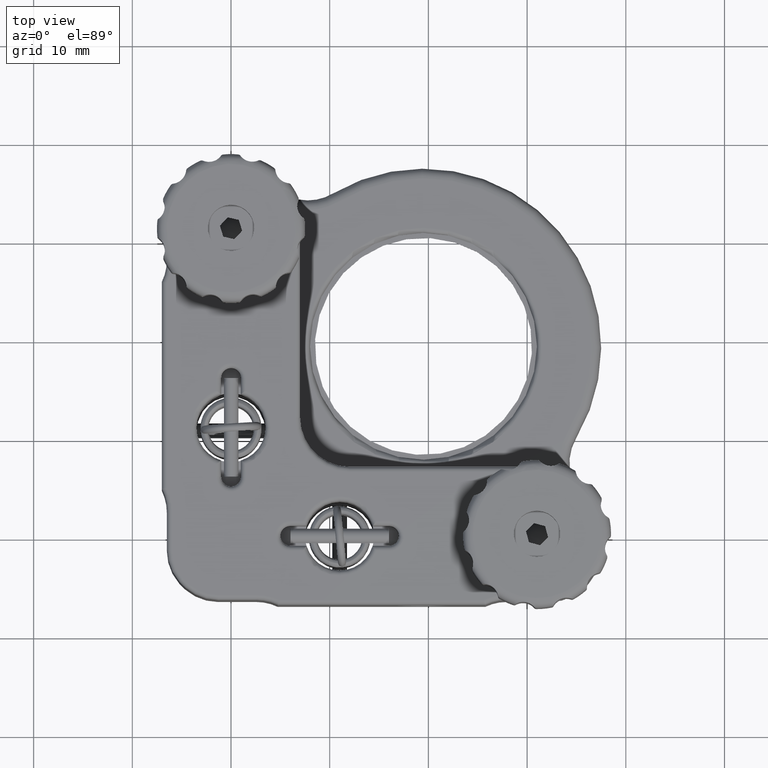
[diagram: clean part render]
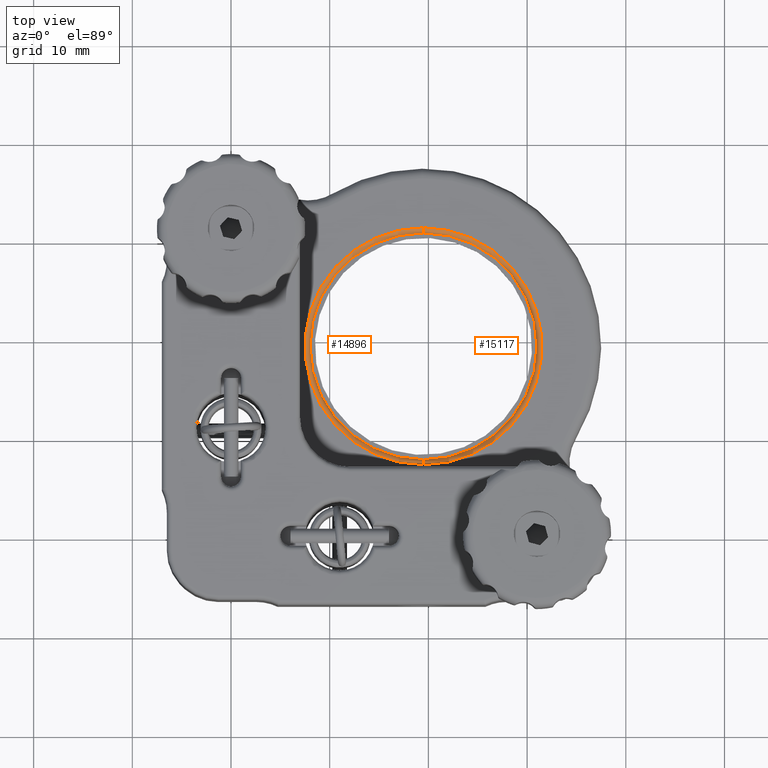
[diagram: same view with one multi-face feature highlighted, each face labeled with its STEP entity id]
A machine part, top view. The highlighted faces form ONE feature: a constant-radius fillet chain: 2 tangent blend faces with common blend radius 0.5 mm. The faces share edges in the B-rep.
Their STEP definitions:
[1] entity #15117 (Torus):
#118 = CARTESIAN_POINT ( 'NONE',  ( 19.49999999999997500, 19.49999999999998600, -9.999999999999987600 ) ) ;
#1392 = CARTESIAN_POINT ( 'NONE',  ( 19.49999999999998900, 7.499999999999969800, -9.999999999999989300 ) ) ;
#1927 = VERTEX_POINT ( 'NONE', #19230 ) ;
#2286 = TOROIDAL_SURFACE ( 'NONE', #6883, 12.00000000000001600, 0.5000000000000000000 ) ;
#2372 = EDGE_CURVE ( 'NONE', #2481, #1927, #9835, .T. ) ;
#2481 = VERTEX_POINT ( 'NONE', #2801 ) ;
#2801 = CARTESIAN_POINT ( 'NONE',  ( 19.49999999999996100, 31.00000000000000000, -10.49999999999998800 ) ) ;
#3921 = EDGE_CURVE ( 'NONE', #11798, #2481, #17449, .T. ) ;
#4225 = EDGE_CURVE ( 'NONE', #11798, #18182, #16172, .T. ) ;
#4497 = DIRECTION ( 'NONE',  ( 0.0000000000000000000, -1.000000000000000000, 0.0000000000000000000 ) ) ;
#4770 = AXIS2_PLACEMENT_3D ( 'NONE', #118, #18036, #19515 ) ;
#4844 = ORIENTED_EDGE ( 'NONE', *, *, #3921, .F. ) ;
#4878 = DIRECTION ( 'NONE',  ( 0.0000000000000000000, 1.000000000000000000, 0.0000000000000000000 ) ) ;
#4945 = CARTESIAN_POINT ( 'NONE',  ( 19.49999999999998900, 7.499999999999969800, -10.49999999999999100 ) ) ;
#5743 = EDGE_LOOP ( 'NONE', ( #16795, #4844, #9062, #9136 ) ) ;
#6345 = FACE_OUTER_BOUND ( 'NONE', #5743, .T. ) ;
#6883 = AXIS2_PLACEMENT_3D ( 'NONE', #9105, #18899, #15750 ) ;
#7291 = DIRECTION ( 'NONE',  ( -3.911801438327713800E-016, -1.942890293094031600E-016, 1.000000000000000000 ) ) ;
#7496 = AXIS2_PLACEMENT_3D ( 'NONE', #15562, #7291, #18579 ) ;
#9062 = ORIENTED_EDGE ( 'NONE', *, *, #4225, .T. ) ;
#9105 = CARTESIAN_POINT ( 'NONE',  ( 19.49999999999997500, 19.49999999999998600, -10.49999999999998900 ) ) ;
#9136 = ORIENTED_EDGE ( 'NONE', *, *, #16326, .F. ) ;
#9835 = CIRCLE ( 'NONE', #11206, 0.5000000000000004400 ) ;
#11206 = AXIS2_PLACEMENT_3D ( 'NONE', #12561, #12639, #4497 ) ;
#11798 = VERTEX_POINT ( 'NONE', #14752 ) ;
#12561 = CARTESIAN_POINT ( 'NONE',  ( 19.49999999999996100, 31.50000000000000000, -10.49999999999998800 ) ) ;
#12639 = DIRECTION ( 'NONE',  ( -1.000000000000000000, -1.260443280155520800E-015, -3.911801438327716300E-016 ) ) ;
#14405 = CIRCLE ( 'NONE', #4770, 12.00000000000001600 ) ;
#14752 = CARTESIAN_POINT ( 'NONE',  ( 19.49999999999998900, 7.999999999999970700, -10.49999999999999100 ) ) ;
#15117 = ADVANCED_FACE ( 'NONE', ( #6345 ), #2286, .T. ) ;
#15562 = CARTESIAN_POINT ( 'NONE',  ( 19.49999999999997500, 19.49999999999998600, -10.49999999999998900 ) ) ;
#15750 = DIRECTION ( 'NONE',  ( 1.110223024625155200E-015, -1.000000000000000000, -1.942890293094027200E-016 ) ) ;
#16172 = CIRCLE ( 'NONE', #17562, 0.5000000000000004400 ) ;
#16279 = DIRECTION ( 'NONE',  ( 1.000000000000000000, 1.137978600240785500E-015, 3.911801438327715800E-016 ) ) ;
#16326 = EDGE_CURVE ( 'NONE', #1927, #18182, #14405, .T. ) ;
#16795 = ORIENTED_EDGE ( 'NONE', *, *, #2372, .F. ) ;
#17449 = CIRCLE ( 'NONE', #7496, 11.50000000000001600 ) ;
#17562 = AXIS2_PLACEMENT_3D ( 'NONE', #4945, #16279, #4878 ) ;
#18036 = DIRECTION ( 'NONE',  ( 3.911801438327713800E-016, 1.942890293094031600E-016, -1.000000000000000000 ) ) ;
#18182 = VERTEX_POINT ( 'NONE', #1392 ) ;
#18579 = DIRECTION ( 'NONE',  ( 1.206764157201255400E-015, -1.000000000000000000, -1.508455196501569200E-016 ) ) ;
#18899 = DIRECTION ( 'NONE',  ( 3.911801438327713800E-016, 1.942890293094031600E-016, -1.000000000000000000 ) ) ;
#19230 = CARTESIAN_POINT ( 'NONE',  ( 19.49999999999996100, 31.50000000000000000, -9.999999999999985800 ) ) ;
#19515 = DIRECTION ( 'NONE',  ( 1.156482317317870000E-015, -1.000000000000000000, -1.445602896647337400E-016 ) ) ;
[2] entity #14896 (Torus):
#1392 = CARTESIAN_POINT ( 'NONE',  ( 19.49999999999998900, 7.499999999999969800, -9.999999999999989300 ) ) ;
#1508 = CIRCLE ( 'NONE', #11913, 11.50000000000001600 ) ;
#1927 = VERTEX_POINT ( 'NONE', #19230 ) ;
#2372 = EDGE_CURVE ( 'NONE', #2481, #1927, #9835, .T. ) ;
#2481 = VERTEX_POINT ( 'NONE', #2801 ) ;
#2801 = CARTESIAN_POINT ( 'NONE',  ( 19.49999999999996100, 31.00000000000000000, -10.49999999999998800 ) ) ;
#2862 = DIRECTION ( 'NONE',  ( 1.156482317317870000E-015, -1.000000000000000000, -1.445602896647337400E-016 ) ) ;
#4225 = EDGE_CURVE ( 'NONE', #11798, #18182, #16172, .T. ) ;
#4497 = DIRECTION ( 'NONE',  ( 0.0000000000000000000, -1.000000000000000000, 0.0000000000000000000 ) ) ;
#4878 = DIRECTION ( 'NONE',  ( 0.0000000000000000000, 1.000000000000000000, 0.0000000000000000000 ) ) ;
#4945 = CARTESIAN_POINT ( 'NONE',  ( 19.49999999999998900, 7.499999999999969800, -10.49999999999999100 ) ) ;
#5095 = TOROIDAL_SURFACE ( 'NONE', #13662, 12.00000000000001600, 0.5000000000000000000 ) ;
#5376 = DIRECTION ( 'NONE',  ( 3.911801438327713800E-016, 1.942890293094031600E-016, -1.000000000000000000 ) ) ;
#6243 = ORIENTED_EDGE ( 'NONE', *, *, #11649, .F. ) ;
#9835 = CIRCLE ( 'NONE', #11206, 0.5000000000000004400 ) ;
#10038 = EDGE_CURVE ( 'NONE', #18182, #1927, #11677, .T. ) ;
#10094 = DIRECTION ( 'NONE',  ( 1.110223024625155200E-015, -1.000000000000000000, -1.942890293094027200E-016 ) ) ;
#10890 = FACE_OUTER_BOUND ( 'NONE', #12077, .T. ) ;
#11206 = AXIS2_PLACEMENT_3D ( 'NONE', #12561, #12639, #4497 ) ;
#11649 = EDGE_CURVE ( 'NONE', #2481, #11798, #1508, .T. ) ;
#11677 = CIRCLE ( 'NONE', #18929, 12.00000000000001600 ) ;
#11798 = VERTEX_POINT ( 'NONE', #14752 ) ;
#11913 = AXIS2_PLACEMENT_3D ( 'NONE', #17556, #19339, #14327 ) ;
#12077 = EDGE_LOOP ( 'NONE', ( #6243, #18458, #19883, #16499 ) ) ;
#12561 = CARTESIAN_POINT ( 'NONE',  ( 19.49999999999996100, 31.50000000000000000, -10.49999999999998800 ) ) ;
#12639 = DIRECTION ( 'NONE',  ( -1.000000000000000000, -1.260443280155520800E-015, -3.911801438327716300E-016 ) ) ;
#13436 = CARTESIAN_POINT ( 'NONE',  ( 19.49999999999997500, 19.49999999999998600, -10.49999999999998900 ) ) ;
#13662 = AXIS2_PLACEMENT_3D ( 'NONE', #13436, #5376, #10094 ) ;
#14053 = DIRECTION ( 'NONE',  ( 3.911801438327713800E-016, 1.942890293094031600E-016, -1.000000000000000000 ) ) ;
#14327 = DIRECTION ( 'NONE',  ( 1.206764157201255400E-015, -1.000000000000000000, -1.508455196501569200E-016 ) ) ;
#14752 = CARTESIAN_POINT ( 'NONE',  ( 19.49999999999998900, 7.999999999999970700, -10.49999999999999100 ) ) ;
#14896 = ADVANCED_FACE ( 'NONE', ( #10890 ), #5095, .T. ) ;
#16172 = CIRCLE ( 'NONE', #17562, 0.5000000000000004400 ) ;
#16279 = DIRECTION ( 'NONE',  ( 1.000000000000000000, 1.137978600240785500E-015, 3.911801438327715800E-016 ) ) ;
#16499 = ORIENTED_EDGE ( 'NONE', *, *, #4225, .F. ) ;
#17556 = CARTESIAN_POINT ( 'NONE',  ( 19.49999999999997500, 19.49999999999998600, -10.49999999999998900 ) ) ;
#17562 = AXIS2_PLACEMENT_3D ( 'NONE', #4945, #16279, #4878 ) ;
#18182 = VERTEX_POINT ( 'NONE', #1392 ) ;
#18458 = ORIENTED_EDGE ( 'NONE', *, *, #2372, .T. ) ;
#18929 = AXIS2_PLACEMENT_3D ( 'NONE', #20683, #14053, #2862 ) ;
#19230 = CARTESIAN_POINT ( 'NONE',  ( 19.49999999999996100, 31.50000000000000000, -9.999999999999985800 ) ) ;
#19339 = DIRECTION ( 'NONE',  ( -3.911801438327713800E-016, -1.942890293094031600E-016, 1.000000000000000000 ) ) ;
#19883 = ORIENTED_EDGE ( 'NONE', *, *, #10038, .F. ) ;
#20683 = CARTESIAN_POINT ( 'NONE',  ( 19.49999999999997500, 19.49999999999998600, -9.999999999999987600 ) ) ;